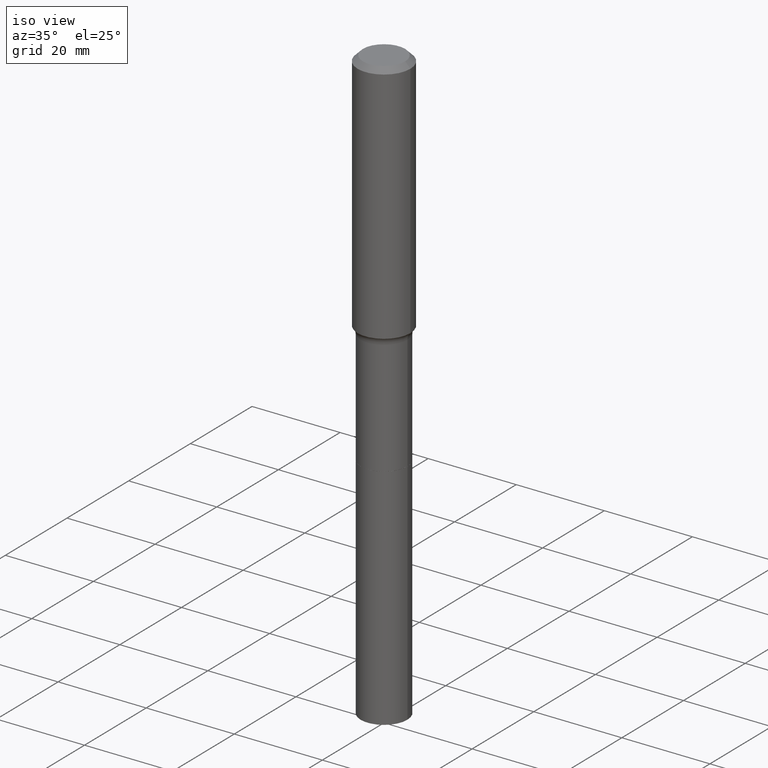
[diagram: clean part render]
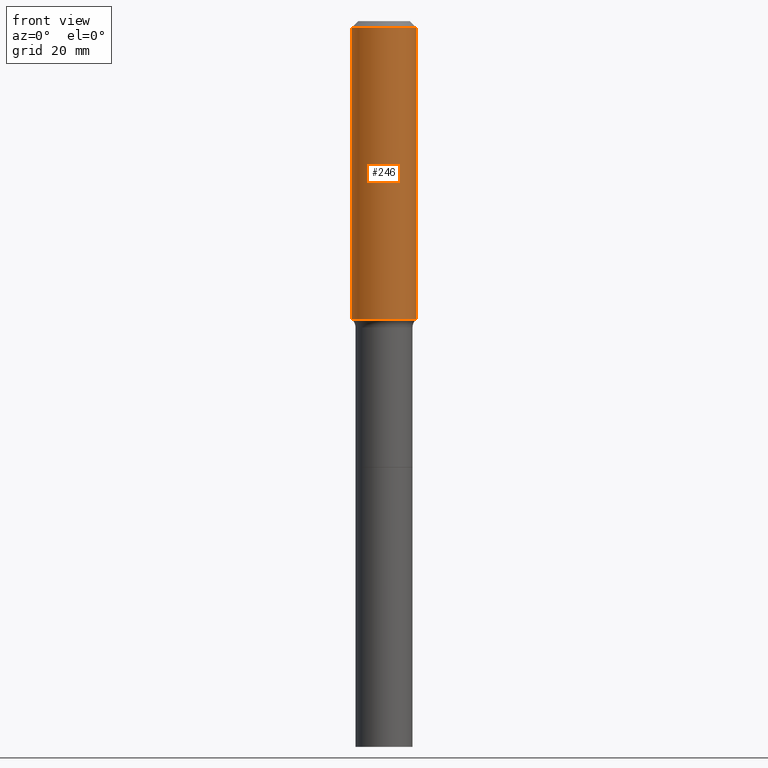
[diagram: tour spotlight — one face highlighted and labeled with its STEP entity id]
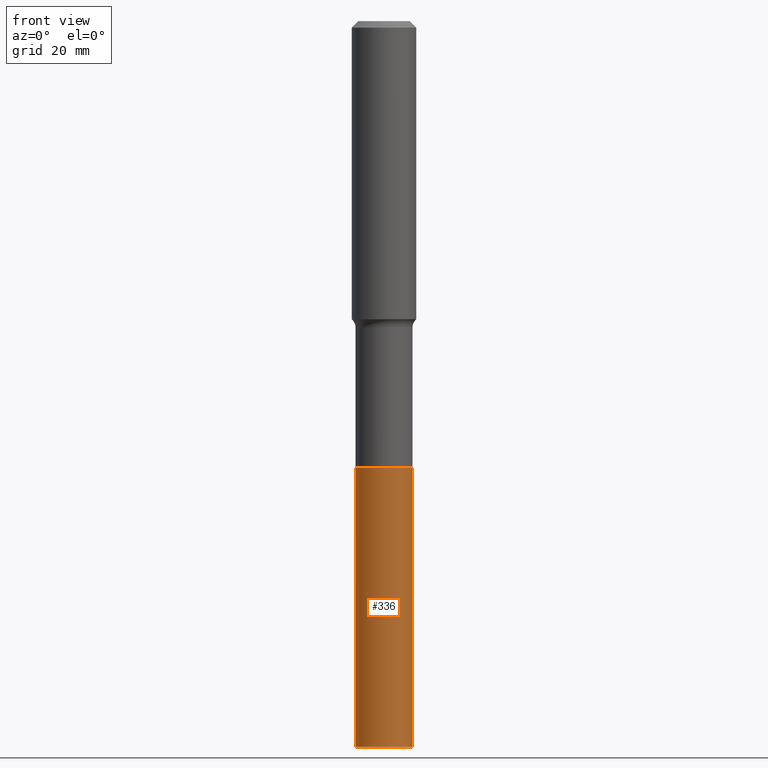
[diagram: tour spotlight — one face highlighted and labeled with its STEP entity id]
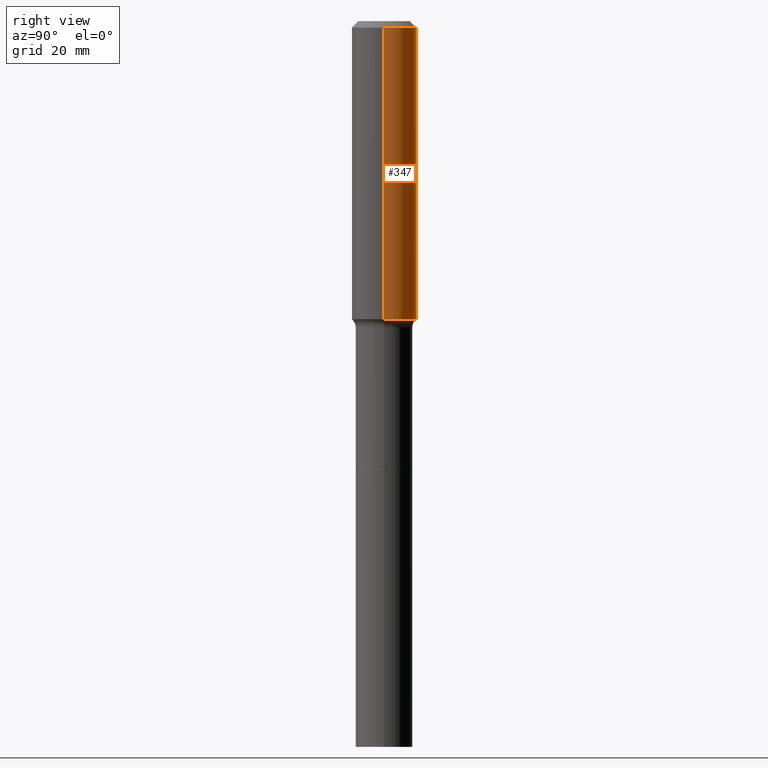
[diagram: tour spotlight — one face highlighted and labeled with its STEP entity id]
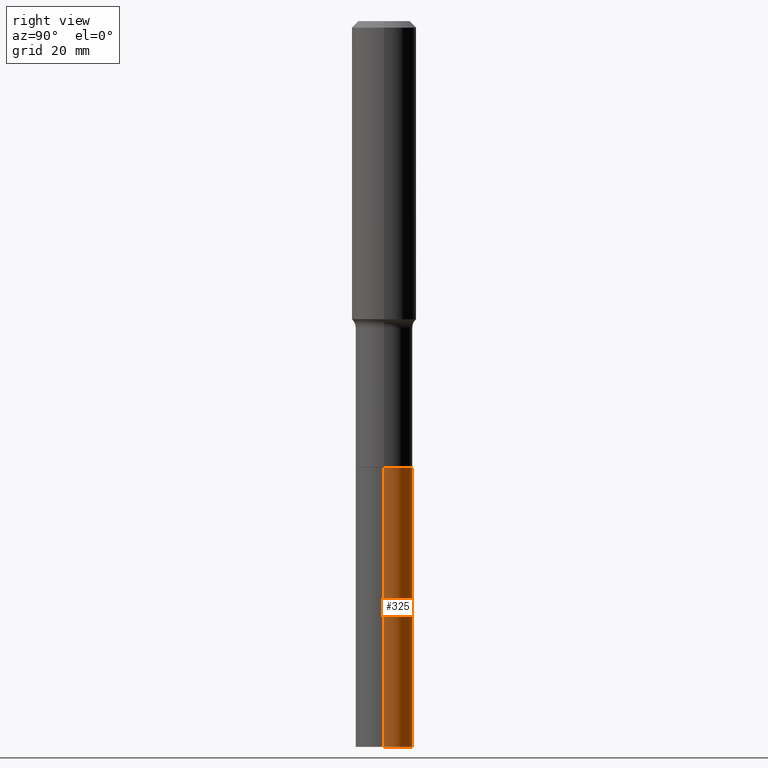
[diagram: tour spotlight — one face highlighted and labeled with its STEP entity id]
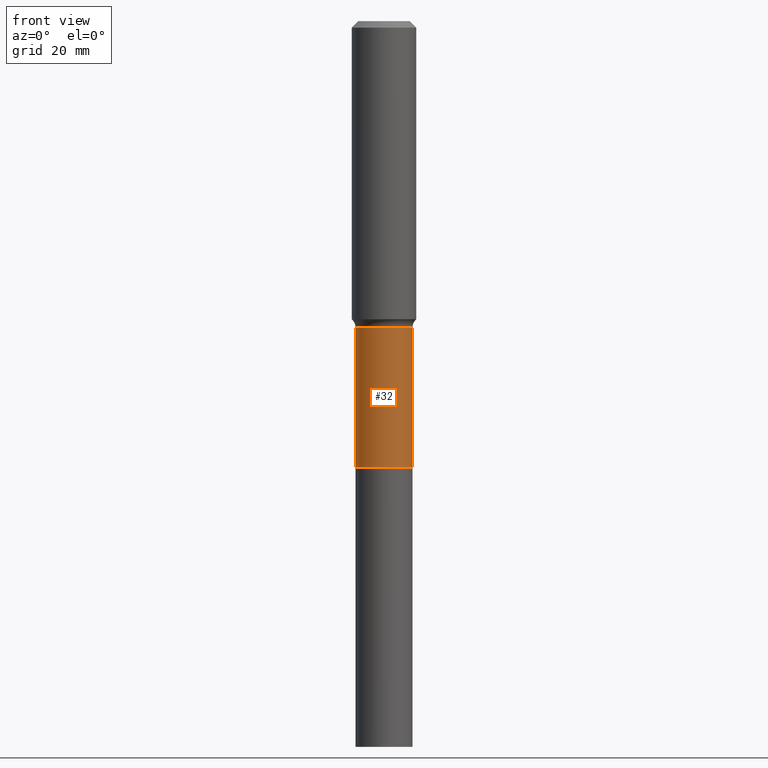
[diagram: tour spotlight — one face highlighted and labeled with its STEP entity id]
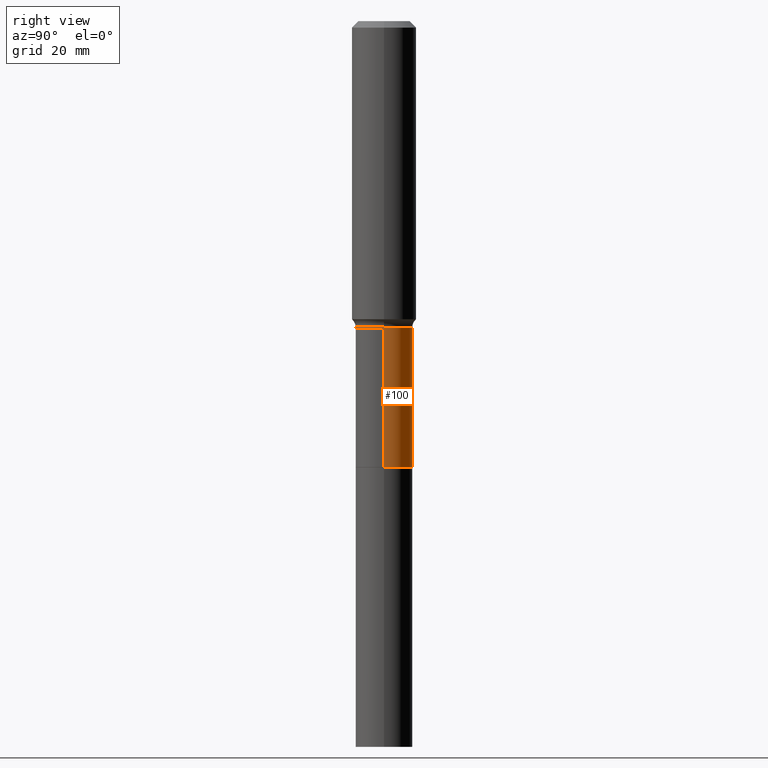
[diagram: tour spotlight — one face highlighted and labeled with its STEP entity id]
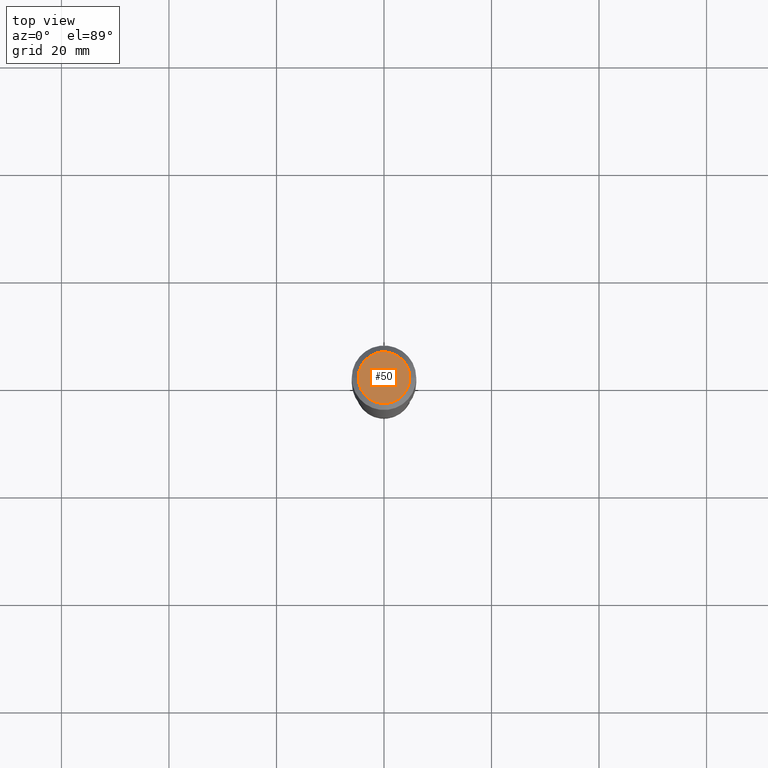
[diagram: tour spotlight — one face highlighted and labeled with its STEP entity id]
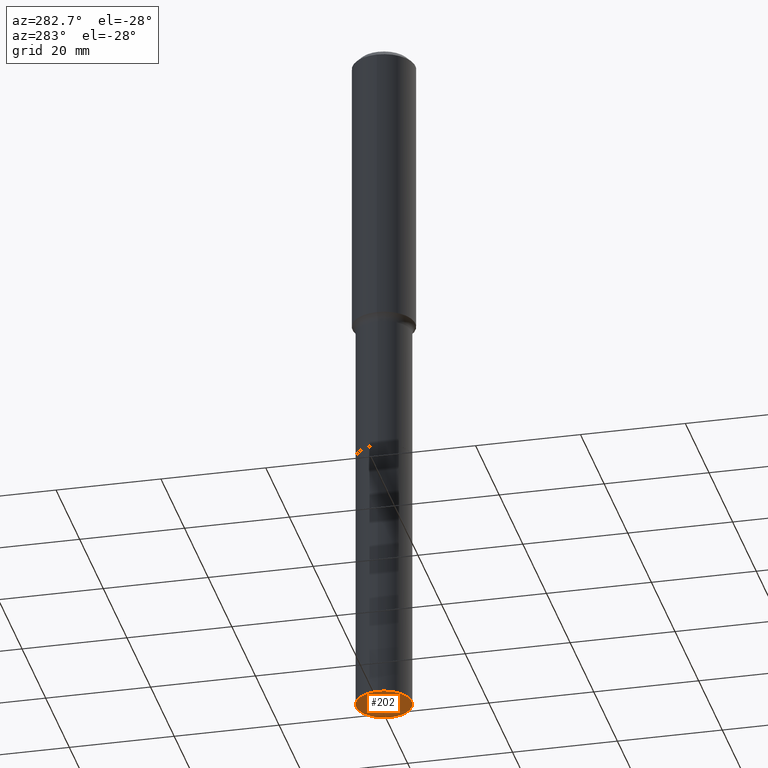
[diagram: tour spotlight — one face highlighted and labeled with its STEP entity id]
A machine part: a face-by-face anatomy tour. The part has 18 B-rep faces; the first image is the clean iso view, then the 8 largest visible faces are spotlighted one at a time (largest first), each with its STEP entity span.

Face 1 — front view, entity #246. In plain terms, the highlighted cylindrical surface (edge-blend (fillet) strip) has radius 5.9995 mm, axis along (-0, 0, 1).
Definition (entity closure, byte-faithful):
#7 = CARTESIAN_POINT ( 'NONE',  ( 0.000000000000000000, 0.000000000000000000, 0.000000000000000000 ) ) ;
#44 = VERTEX_POINT ( 'NONE', #481 ) ;
#49 = DIRECTION ( 'NONE',  ( 1.000000000000000000, -6.982962677686266711E-15, 4.876176775795936353E-29 ) ) ;
#51 = FACE_OUTER_BOUND ( 'NONE', #334, .T. ) ;
#60 = CIRCLE ( 'NONE', #356, 0.2362000000000002709 ) ;
#89 = CYLINDRICAL_SURFACE ( 'NONE', #227, 0.2362000000000001321 ) ;
#92 = DIRECTION ( 'NONE',  ( 1.000000000000000000, -6.982962677686269077E-15, 0.000000000000000000 ) ) ;
#93 = CARTESIAN_POINT ( 'NONE',  ( 0.2362000000000001321, -1.649375784469497117E-15, 1.151752954443000789E-29 ) ) ;
#112 = DIRECTION ( 'NONE',  ( -2.445468806185136877E-29, 3.491481338843145188E-15, 1.000000000000000000 ) ) ;
#123 = DIRECTION ( 'NONE',  ( -2.445468806185136597E-29, 3.491481338843145583E-15, 1.000000000000000000 ) ) ;
#149 = VERTEX_POINT ( 'NONE', #396 ) ;
#158 = EDGE_CURVE ( 'NONE', #44, #149, #313, .T. ) ;
#163 = CARTESIAN_POINT ( 'NONE',  ( 5.338320000124226964E-29, -7.621706158780509838E-15, -2.182943403989625164 ) ) ;
#168 = EDGE_CURVE ( 'NONE', #463, #445, #60, .T. ) ;
#198 = CARTESIAN_POINT ( 'NONE',  ( 1.155239464041865857E-30, -1.649375784469512352E-16, -0.04724000000000030258 ) ) ;
#227 = AXIS2_PLACEMENT_3D ( 'NONE', #7, #252, #49 ) ;
#241 = VECTOR ( 'NONE', #260, 39.37007874015748143 ) ;
#245 = ORIENTED_EDGE ( 'NONE', *, *, #510, .F. ) ;
#246 = ADVANCED_FACE ( 'NONE', ( #51 ), #89, .T. ) ;
#252 = DIRECTION ( 'NONE',  ( -2.445468806185136597E-29, 3.491481338843145583E-15, 1.000000000000000000 ) ) ;
#260 = DIRECTION ( 'NONE',  ( -2.445468806185136877E-29, 3.491481338843145188E-15, 1.000000000000000000 ) ) ;
#275 = DIRECTION ( 'NONE',  ( 1.000000000000000000, -6.982962677686266711E-15, 0.000000000000000000 ) ) ;
#293 = CARTESIAN_POINT ( 'NONE',  ( -0.2362000000000002709, -5.943404216915151867E-15, -2.182943403989625164 ) ) ;
#313 = CIRCLE ( 'NONE', #373, 0.2361999999999999933 ) ;
#334 = EDGE_LOOP ( 'NONE', ( #245, #503, #420, #499 ) ) ;
#356 = AXIS2_PLACEMENT_3D ( 'NONE', #163, #123, #92 ) ;
#373 = AXIS2_PLACEMENT_3D ( 'NONE', #198, #517, #275 ) ;
#380 = CARTESIAN_POINT ( 'NONE',  ( 0.2362000000000002709, -9.271081943250007941E-15, -2.182943403989625164 ) ) ;
#394 = LINE ( 'NONE', #434, #443 ) ;
#396 = CARTESIAN_POINT ( 'NONE',  ( 0.2361999999999999933, -1.814313362916447440E-15, -0.04724000000000030258 ) ) ;
#420 = ORIENTED_EDGE ( 'NONE', *, *, #494, .T. ) ;
#434 = CARTESIAN_POINT ( 'NONE',  ( -0.2362000000000001321, 1.678301941865357577E-15, -1.161852468318209457E-29 ) ) ;
#443 = VECTOR ( 'NONE', #112, 39.37007874015748143 ) ;
#445 = VERTEX_POINT ( 'NONE', #380 ) ;
#463 = VERTEX_POINT ( 'NONE', #293 ) ;
#481 = CARTESIAN_POINT ( 'NONE',  ( -0.2361999999999999933, -2.215019926748371616E-15, -0.04724000000000030258 ) ) ;
#494 = EDGE_CURVE ( 'NONE', #445, #149, #495, .T. ) ;
#495 = LINE ( 'NONE', #93, #241 ) ;
#499 = ORIENTED_EDGE ( 'NONE', *, *, #158, .F. ) ;
#503 = ORIENTED_EDGE ( 'NONE', *, *, #168, .T. ) ;
#510 = EDGE_CURVE ( 'NONE', #463, #44, #394, .T. ) ;
#517 = DIRECTION ( 'NONE',  ( -2.445468806185136597E-29, 3.491481338843145583E-15, 1.000000000000000000 ) ) ;

Face 2 — front view, entity #336. In plain terms, the highlighted cylindrical surface (edge-blend (fillet) strip) has radius 5.2997 mm, axis along (-0, 0, 1).
Definition (entity closure, byte-faithful):
#3 = CYLINDRICAL_SURFACE ( 'NONE', #54, 0.2086500000000001687 ) ;
#4 = CIRCLE ( 'NONE', #501, 0.2086500000000000021 ) ;
#21 = ORIENTED_EDGE ( 'NONE', *, *, #300, .T. ) ;
#36 = LINE ( 'NONE', #398, #184 ) ;
#46 = AXIS2_PLACEMENT_3D ( 'NONE', #318, #121, #86 ) ;
#53 = ORIENTED_EDGE ( 'NONE', *, *, #309, .T. ) ;
#54 = AXIS2_PLACEMENT_3D ( 'NONE', #247, #96, #188 ) ;
#84 = CARTESIAN_POINT ( 'NONE',  ( 0.2086500000000000021, -1.286715617803863986E-14, -3.268000000000000238 ) ) ;
#86 = DIRECTION ( 'NONE',  ( 1.000000000000000000, -6.982962677686263555E-15, 0.000000000000000000 ) ) ;
#96 = DIRECTION ( 'NONE',  ( -2.445468806185136597E-29, 3.491481338843145583E-15, 1.000000000000000000 ) ) ;
#98 = VECTOR ( 'NONE', #242, 39.37007874015748143 ) ;
#109 = EDGE_CURVE ( 'NONE', #485, #340, #36, .T. ) ;
#121 = DIRECTION ( 'NONE',  ( -2.445468806185136597E-29, 3.491481338843145583E-15, 1.000000000000000000 ) ) ;
#125 = CARTESIAN_POINT ( 'NONE',  ( 0.2086500000000003352, -2.001421847865056104E-14, -5.315000000000000391 ) ) ;
#184 = VECTOR ( 'NONE', #518, 39.37007874015748143 ) ;
#188 = DIRECTION ( 'NONE',  ( 1.000000000000000000, -6.982962677686269866E-15, 0.000000000000000000 ) ) ;
#206 = DIRECTION ( 'NONE',  ( 1.000000000000000000, -6.982962677686265922E-15, 0.000000000000000000 ) ) ;
#207 = ORIENTED_EDGE ( 'NONE', *, *, #305, .F. ) ;
#242 = DIRECTION ( 'NONE',  ( -2.445468806185136877E-29, 3.491481338843145188E-15, 1.000000000000000000 ) ) ;
#247 = CARTESIAN_POINT ( 'NONE',  ( 7.991792058613026945E-29, -1.141016101533940013E-14, -3.268000000000000238 ) ) ;
#256 = VERTEX_POINT ( 'NONE', #125 ) ;
#261 = VERTEX_POINT ( 'NONE', #84 ) ;
#263 = EDGE_LOOP ( 'NONE', ( #450, #21, #53, #207 ) ) ;
#264 = CARTESIAN_POINT ( 'NONE',  ( -0.2086500000000000021, -1.350114474748190851E-14, -3.268000000000000238 ) ) ;
#287 = DIRECTION ( 'NONE',  ( -2.445468806185136597E-29, 3.491481338843145583E-15, 1.000000000000000000 ) ) ;
#300 = EDGE_CURVE ( 'NONE', #485, #256, #516, .T. ) ;
#305 = EDGE_CURVE ( 'NONE', #340, #261, #4, .T. ) ;
#309 = EDGE_CURVE ( 'NONE', #256, #261, #326, .T. ) ;
#318 = CARTESIAN_POINT ( 'NONE',  ( 1.299766670487400218E-28, -1.855722331595131973E-14, -5.315000000000000391 ) ) ;
#320 = FACE_OUTER_BOUND ( 'NONE', #263, .T. ) ;
#326 = LINE ( 'NONE', #492, #98 ) ;
#328 = CARTESIAN_POINT ( 'NONE',  ( 7.991792058613026945E-29, -1.141016101533940013E-14, -3.268000000000000238 ) ) ;
#332 = CARTESIAN_POINT ( 'NONE',  ( -0.2086500000000003352, -1.350114474748190378E-14, -5.315000000000000391 ) ) ;
#336 = ADVANCED_FACE ( 'NONE', ( #320 ), #3, .T. ) ;
#340 = VERTEX_POINT ( 'NONE', #264 ) ;
#398 = CARTESIAN_POINT ( 'NONE',  ( -0.2086500000000001687, -9.927613597175949501E-15, -3.268000000000000238 ) ) ;
#450 = ORIENTED_EDGE ( 'NONE', *, *, #109, .F. ) ;
#485 = VERTEX_POINT ( 'NONE', #332 ) ;
#492 = CARTESIAN_POINT ( 'NONE',  ( 0.2086500000000001687, -1.286715617803864144E-14, -3.268000000000000238 ) ) ;
#501 = AXIS2_PLACEMENT_3D ( 'NONE', #328, #287, #206 ) ;
#516 = CIRCLE ( 'NONE', #46, 0.2086500000000003352 ) ;
#518 = DIRECTION ( 'NONE',  ( -2.445468806185136877E-29, 3.491481338843145188E-15, 1.000000000000000000 ) ) ;

Face 3 — right view, entity #347. In plain terms, the highlighted cylindrical surface (edge-blend (fillet) strip) has radius 5.9995 mm, axis along (-0, 0, 1).
Definition (entity closure, byte-faithful):
#23 = DIRECTION ( 'NONE',  ( 1.000000000000000000, -6.982962677686266711E-15, 0.000000000000000000 ) ) ;
#44 = VERTEX_POINT ( 'NONE', #481 ) ;
#47 = ORIENTED_EDGE ( 'NONE', *, *, #510, .T. ) ;
#62 = CARTESIAN_POINT ( 'NONE',  ( 1.155239464041865857E-30, -1.649375784469512352E-16, -0.04724000000000030258 ) ) ;
#81 = AXIS2_PLACEMENT_3D ( 'NONE', #148, #179, #453 ) ;
#87 = ORIENTED_EDGE ( 'NONE', *, *, #494, .F. ) ;
#91 = EDGE_LOOP ( 'NONE', ( #180, #47, #124, #87 ) ) ;
#93 = CARTESIAN_POINT ( 'NONE',  ( 0.2362000000000001321, -1.649375784469497117E-15, 1.151752954443000789E-29 ) ) ;
#112 = DIRECTION ( 'NONE',  ( -2.445468806185136877E-29, 3.491481338843145188E-15, 1.000000000000000000 ) ) ;
#124 = ORIENTED_EDGE ( 'NONE', *, *, #439, .F. ) ;
#128 = CIRCLE ( 'NONE', #422, 0.2362000000000002709 ) ;
#131 = AXIS2_PLACEMENT_3D ( 'NONE', #62, #225, #23 ) ;
#148 = CARTESIAN_POINT ( 'NONE',  ( 0.000000000000000000, 0.000000000000000000, 0.000000000000000000 ) ) ;
#149 = VERTEX_POINT ( 'NONE', #396 ) ;
#154 = CIRCLE ( 'NONE', #131, 0.2361999999999999933 ) ;
#164 = DIRECTION ( 'NONE',  ( 1.000000000000000000, -6.982962677686269077E-15, 0.000000000000000000 ) ) ;
#175 = EDGE_CURVE ( 'NONE', #445, #463, #128, .T. ) ;
#179 = DIRECTION ( 'NONE',  ( -2.445468806185136597E-29, 3.491481338843145583E-15, 1.000000000000000000 ) ) ;
#180 = ORIENTED_EDGE ( 'NONE', *, *, #175, .T. ) ;
#225 = DIRECTION ( 'NONE',  ( -2.445468806185136597E-29, 3.491481338843145583E-15, 1.000000000000000000 ) ) ;
#241 = VECTOR ( 'NONE', #260, 39.37007874015748143 ) ;
#260 = DIRECTION ( 'NONE',  ( -2.445468806185136877E-29, 3.491481338843145188E-15, 1.000000000000000000 ) ) ;
#291 = DIRECTION ( 'NONE',  ( -2.445468806185136597E-29, 3.491481338843145583E-15, 1.000000000000000000 ) ) ;
#293 = CARTESIAN_POINT ( 'NONE',  ( -0.2362000000000002709, -5.943404216915151867E-15, -2.182943403989625164 ) ) ;
#335 = CYLINDRICAL_SURFACE ( 'NONE', #81, 0.2362000000000001321 ) ;
#347 = ADVANCED_FACE ( 'NONE', ( #505 ), #335, .T. ) ;
#380 = CARTESIAN_POINT ( 'NONE',  ( 0.2362000000000002709, -9.271081943250007941E-15, -2.182943403989625164 ) ) ;
#394 = LINE ( 'NONE', #434, #443 ) ;
#396 = CARTESIAN_POINT ( 'NONE',  ( 0.2361999999999999933, -1.814313362916447440E-15, -0.04724000000000030258 ) ) ;
#422 = AXIS2_PLACEMENT_3D ( 'NONE', #441, #291, #164 ) ;
#434 = CARTESIAN_POINT ( 'NONE',  ( -0.2362000000000001321, 1.678301941865357577E-15, -1.161852468318209457E-29 ) ) ;
#439 = EDGE_CURVE ( 'NONE', #149, #44, #154, .T. ) ;
#441 = CARTESIAN_POINT ( 'NONE',  ( 5.338320000124226964E-29, -7.621706158780509838E-15, -2.182943403989625164 ) ) ;
#443 = VECTOR ( 'NONE', #112, 39.37007874015748143 ) ;
#445 = VERTEX_POINT ( 'NONE', #380 ) ;
#453 = DIRECTION ( 'NONE',  ( 1.000000000000000000, -6.982962677686266711E-15, 4.876176775795936353E-29 ) ) ;
#463 = VERTEX_POINT ( 'NONE', #293 ) ;
#481 = CARTESIAN_POINT ( 'NONE',  ( -0.2361999999999999933, -2.215019926748371616E-15, -0.04724000000000030258 ) ) ;
#494 = EDGE_CURVE ( 'NONE', #445, #149, #495, .T. ) ;
#495 = LINE ( 'NONE', #93, #241 ) ;
#505 = FACE_OUTER_BOUND ( 'NONE', #91, .T. ) ;
#510 = EDGE_CURVE ( 'NONE', #463, #44, #394, .T. ) ;

Face 4 — right view, entity #325. In plain terms, the highlighted cylindrical surface (edge-blend (fillet) strip) has radius 5.2997 mm, axis along (-0, 0, 1).
Definition (entity closure, byte-faithful):
#1 = CYLINDRICAL_SURFACE ( 'NONE', #73, 0.2086500000000001687 ) ;
#12 = CIRCLE ( 'NONE', #240, 0.2086500000000003352 ) ;
#31 = DIRECTION ( 'NONE',  ( -2.445468806185136597E-29, 3.491481338843145583E-15, 1.000000000000000000 ) ) ;
#36 = LINE ( 'NONE', #398, #184 ) ;
#40 = CARTESIAN_POINT ( 'NONE',  ( 1.299766670487400218E-28, -1.855722331595131973E-14, -5.315000000000000391 ) ) ;
#63 = ORIENTED_EDGE ( 'NONE', *, *, #79, .F. ) ;
#67 = EDGE_CURVE ( 'NONE', #256, #485, #12, .T. ) ;
#72 = DIRECTION ( 'NONE',  ( -2.445468806185136597E-29, 3.491481338843145583E-15, 1.000000000000000000 ) ) ;
#73 = AXIS2_PLACEMENT_3D ( 'NONE', #165, #405, #364 ) ;
#79 = EDGE_CURVE ( 'NONE', #261, #340, #95, .T. ) ;
#84 = CARTESIAN_POINT ( 'NONE',  ( 0.2086500000000000021, -1.286715617803863986E-14, -3.268000000000000238 ) ) ;
#95 = CIRCLE ( 'NONE', #208, 0.2086500000000000021 ) ;
#98 = VECTOR ( 'NONE', #242, 39.37007874015748143 ) ;
#109 = EDGE_CURVE ( 'NONE', #485, #340, #36, .T. ) ;
#117 = DIRECTION ( 'NONE',  ( 1.000000000000000000, -6.982962677686263555E-15, 0.000000000000000000 ) ) ;
#125 = CARTESIAN_POINT ( 'NONE',  ( 0.2086500000000003352, -2.001421847865056104E-14, -5.315000000000000391 ) ) ;
#165 = CARTESIAN_POINT ( 'NONE',  ( 7.991792058613026945E-29, -1.141016101533940013E-14, -3.268000000000000238 ) ) ;
#184 = VECTOR ( 'NONE', #518, 39.37007874015748143 ) ;
#204 = FACE_OUTER_BOUND ( 'NONE', #248, .T. ) ;
#208 = AXIS2_PLACEMENT_3D ( 'NONE', #312, #31, #511 ) ;
#240 = AXIS2_PLACEMENT_3D ( 'NONE', #40, #72, #117 ) ;
#242 = DIRECTION ( 'NONE',  ( -2.445468806185136877E-29, 3.491481338843145188E-15, 1.000000000000000000 ) ) ;
#248 = EDGE_LOOP ( 'NONE', ( #423, #265, #63, #496 ) ) ;
#256 = VERTEX_POINT ( 'NONE', #125 ) ;
#261 = VERTEX_POINT ( 'NONE', #84 ) ;
#264 = CARTESIAN_POINT ( 'NONE',  ( -0.2086500000000000021, -1.350114474748190851E-14, -3.268000000000000238 ) ) ;
#265 = ORIENTED_EDGE ( 'NONE', *, *, #109, .T. ) ;
#309 = EDGE_CURVE ( 'NONE', #256, #261, #326, .T. ) ;
#312 = CARTESIAN_POINT ( 'NONE',  ( 7.991792058613026945E-29, -1.141016101533940013E-14, -3.268000000000000238 ) ) ;
#325 = ADVANCED_FACE ( 'NONE', ( #204 ), #1, .T. ) ;
#326 = LINE ( 'NONE', #492, #98 ) ;
#332 = CARTESIAN_POINT ( 'NONE',  ( -0.2086500000000003352, -1.350114474748190378E-14, -5.315000000000000391 ) ) ;
#340 = VERTEX_POINT ( 'NONE', #264 ) ;
#364 = DIRECTION ( 'NONE',  ( 1.000000000000000000, -6.982962677686269866E-15, 0.000000000000000000 ) ) ;
#398 = CARTESIAN_POINT ( 'NONE',  ( -0.2086500000000001687, -9.927613597175949501E-15, -3.268000000000000238 ) ) ;
#405 = DIRECTION ( 'NONE',  ( -2.445468806185136597E-29, 3.491481338843145583E-15, 1.000000000000000000 ) ) ;
#423 = ORIENTED_EDGE ( 'NONE', *, *, #67, .T. ) ;
#485 = VERTEX_POINT ( 'NONE', #332 ) ;
#492 = CARTESIAN_POINT ( 'NONE',  ( 0.2086500000000001687, -1.286715617803864144E-14, -3.268000000000000238 ) ) ;
#496 = ORIENTED_EDGE ( 'NONE', *, *, #309, .F. ) ;
#511 = DIRECTION ( 'NONE',  ( 1.000000000000000000, -6.982962677686265922E-15, 0.000000000000000000 ) ) ;
#518 = DIRECTION ( 'NONE',  ( -2.445468806185136877E-29, 3.491481338843145188E-15, 1.000000000000000000 ) ) ;

Face 5 — front view, entity #32. In plain terms, the highlighted cylindrical surface (edge-blend (fillet) strip) has radius 5.2997 mm, axis along (-0, 0, 1).
Definition (entity closure, byte-faithful):
#8 = ORIENTED_EDGE ( 'NONE', *, *, #448, .F. ) ;
#17 = VERTEX_POINT ( 'NONE', #110 ) ;
#32 = ADVANCED_FACE ( 'NONE', ( #160 ), #201, .T. ) ;
#41 = DIRECTION ( 'NONE',  ( -2.445468806185136877E-29, 3.491481338843145188E-15, 1.000000000000000000 ) ) ;
#58 = DIRECTION ( 'NONE',  ( 1.000000000000000000, -6.982962677686265922E-15, 0.000000000000000000 ) ) ;
#61 = EDGE_CURVE ( 'NONE', #385, #183, #479, .T. ) ;
#64 = AXIS2_PLACEMENT_3D ( 'NONE', #298, #223, #502 ) ;
#65 = DIRECTION ( 'NONE',  ( -2.445468806185136597E-29, 3.491481338843145583E-15, 1.000000000000000000 ) ) ;
#75 = CARTESIAN_POINT ( 'NONE',  ( 0.000000000000000000, 0.000000000000000000, 0.000000000000000000 ) ) ;
#94 = ORIENTED_EDGE ( 'NONE', *, *, #250, .F. ) ;
#104 = VERTEX_POINT ( 'NONE', #193 ) ;
#110 = CARTESIAN_POINT ( 'NONE',  ( -0.2086499999999999744, -8.139102281353550858E-15, -3.267500000000000071 ) ) ;
#126 = ORIENTED_EDGE ( 'NONE', *, *, #61, .T. ) ;
#141 = EDGE_LOOP ( 'NONE', ( #94, #376, #126, #8 ) ) ;
#160 = FACE_OUTER_BOUND ( 'NONE', #141, .T. ) ;
#177 = AXIS2_PLACEMENT_3D ( 'NONE', #262, #65, #58 ) ;
#183 = VERTEX_POINT ( 'NONE', #489 ) ;
#192 = AXIS2_PLACEMENT_3D ( 'NONE', #75, #399, #354 ) ;
#193 = CARTESIAN_POINT ( 'NONE',  ( -0.2086499999999998634, -8.139102281353550858E-15, -2.244000000000000217 ) ) ;
#199 = CIRCLE ( 'NONE', #177, 0.2086499999999998634 ) ;
#201 = CYLINDRICAL_SURFACE ( 'NONE', #192, 0.2086499999999999466 ) ;
#213 = LINE ( 'NONE', #214, #217 ) ;
#214 = CARTESIAN_POINT ( 'NONE',  ( -0.2086499999999999466, 1.482547418163448659E-15, -1.026335806581685680E-29 ) ) ;
#217 = VECTOR ( 'NONE', #41, 39.37007874015748143 ) ;
#223 = DIRECTION ( 'NONE',  ( -2.445468806185136597E-29, 3.491481338843145583E-15, 1.000000000000000000 ) ) ;
#250 = EDGE_CURVE ( 'NONE', #17, #104, #213, .T. ) ;
#259 = CIRCLE ( 'NONE', #64, 0.2086500000000000021 ) ;
#262 = CARTESIAN_POINT ( 'NONE',  ( 5.487632001079447088E-29, -7.834884124364020406E-15, -2.244000000000000217 ) ) ;
#279 = DIRECTION ( 'NONE',  ( -2.445468806185136877E-29, 3.491481338843145188E-15, 1.000000000000000000 ) ) ;
#298 = CARTESIAN_POINT ( 'NONE',  ( 7.990569324209934144E-29, -1.140841527466997784E-14, -3.267500000000000071 ) ) ;
#333 = CARTESIAN_POINT ( 'NONE',  ( 0.2086500000000000021, -1.286541043736921757E-14, -3.267500000000000071 ) ) ;
#343 = EDGE_CURVE ( 'NONE', #17, #385, #259, .T. ) ;
#354 = DIRECTION ( 'NONE',  ( 1.000000000000000000, -6.982962677686266711E-15, 4.876176775795935793E-29 ) ) ;
#376 = ORIENTED_EDGE ( 'NONE', *, *, #343, .T. ) ;
#385 = VERTEX_POINT ( 'NONE', #333 ) ;
#389 = CARTESIAN_POINT ( 'NONE',  ( 0.2086499999999999466, -1.456995162699239141E-15, 1.017414284269821704E-29 ) ) ;
#390 = VECTOR ( 'NONE', #279, 39.37007874015748143 ) ;
#399 = DIRECTION ( 'NONE',  ( -2.445468806185136597E-29, 3.491481338843145583E-15, 1.000000000000000000 ) ) ;
#448 = EDGE_CURVE ( 'NONE', #104, #183, #199, .T. ) ;
#479 = LINE ( 'NONE', #389, #390 ) ;
#489 = CARTESIAN_POINT ( 'NONE',  ( 0.2086499999999998634, -9.291879287063258560E-15, -2.244000000000000217 ) ) ;
#502 = DIRECTION ( 'NONE',  ( 1.000000000000000000, -6.982962677686265922E-15, 0.000000000000000000 ) ) ;

Face 6 — right view, entity #100. In plain terms, the highlighted cylindrical surface (edge-blend (fillet) strip) has radius 5.2997 mm, axis along (-0, 0, 1).
Definition (entity closure, byte-faithful):
#17 = VERTEX_POINT ( 'NONE', #110 ) ;
#39 = AXIS2_PLACEMENT_3D ( 'NONE', #361, #368, #172 ) ;
#41 = DIRECTION ( 'NONE',  ( -2.445468806185136877E-29, 3.491481338843145188E-15, 1.000000000000000000 ) ) ;
#52 = DIRECTION ( 'NONE',  ( -2.445468806185136597E-29, 3.491481338843145583E-15, 1.000000000000000000 ) ) ;
#61 = EDGE_CURVE ( 'NONE', #385, #183, #479, .T. ) ;
#77 = DIRECTION ( 'NONE',  ( -2.445468806185136597E-29, 3.491481338843145583E-15, 1.000000000000000000 ) ) ;
#100 = ADVANCED_FACE ( 'NONE', ( #310 ), #156, .T. ) ;
#104 = VERTEX_POINT ( 'NONE', #193 ) ;
#110 = CARTESIAN_POINT ( 'NONE',  ( -0.2086499999999999744, -8.139102281353550858E-15, -3.267500000000000071 ) ) ;
#135 = EDGE_LOOP ( 'NONE', ( #337, #457, #414, #342 ) ) ;
#156 = CYLINDRICAL_SURFACE ( 'NONE', #477, 0.2086499999999999466 ) ;
#172 = DIRECTION ( 'NONE',  ( 1.000000000000000000, -6.982962677686265922E-15, 0.000000000000000000 ) ) ;
#183 = VERTEX_POINT ( 'NONE', #489 ) ;
#193 = CARTESIAN_POINT ( 'NONE',  ( -0.2086499999999998634, -8.139102281353550858E-15, -2.244000000000000217 ) ) ;
#213 = LINE ( 'NONE', #214, #217 ) ;
#214 = CARTESIAN_POINT ( 'NONE',  ( -0.2086499999999999466, 1.482547418163448659E-15, -1.026335806581685680E-29 ) ) ;
#217 = VECTOR ( 'NONE', #41, 39.37007874015748143 ) ;
#250 = EDGE_CURVE ( 'NONE', #17, #104, #213, .T. ) ;
#251 = CIRCLE ( 'NONE', #39, 0.2086499999999998634 ) ;
#255 = CARTESIAN_POINT ( 'NONE',  ( 7.990569324209934144E-29, -1.140841527466997784E-14, -3.267500000000000071 ) ) ;
#257 = EDGE_CURVE ( 'NONE', #183, #104, #251, .T. ) ;
#268 = AXIS2_PLACEMENT_3D ( 'NONE', #255, #52, #417 ) ;
#279 = DIRECTION ( 'NONE',  ( -2.445468806185136877E-29, 3.491481338843145188E-15, 1.000000000000000000 ) ) ;
#310 = FACE_OUTER_BOUND ( 'NONE', #135, .T. ) ;
#315 = CIRCLE ( 'NONE', #268, 0.2086500000000000021 ) ;
#333 = CARTESIAN_POINT ( 'NONE',  ( 0.2086500000000000021, -1.286541043736921757E-14, -3.267500000000000071 ) ) ;
#337 = ORIENTED_EDGE ( 'NONE', *, *, #497, .T. ) ;
#342 = ORIENTED_EDGE ( 'NONE', *, *, #61, .F. ) ;
#360 = CARTESIAN_POINT ( 'NONE',  ( 0.000000000000000000, 0.000000000000000000, 0.000000000000000000 ) ) ;
#361 = CARTESIAN_POINT ( 'NONE',  ( 5.487632001079447088E-29, -7.834884124364020406E-15, -2.244000000000000217 ) ) ;
#368 = DIRECTION ( 'NONE',  ( -2.445468806185136597E-29, 3.491481338843145583E-15, 1.000000000000000000 ) ) ;
#385 = VERTEX_POINT ( 'NONE', #333 ) ;
#389 = CARTESIAN_POINT ( 'NONE',  ( 0.2086499999999999466, -1.456995162699239141E-15, 1.017414284269821704E-29 ) ) ;
#390 = VECTOR ( 'NONE', #279, 39.37007874015748143 ) ;
#414 = ORIENTED_EDGE ( 'NONE', *, *, #257, .F. ) ;
#417 = DIRECTION ( 'NONE',  ( 1.000000000000000000, -6.982962677686265922E-15, 0.000000000000000000 ) ) ;
#457 = ORIENTED_EDGE ( 'NONE', *, *, #250, .T. ) ;
#475 = DIRECTION ( 'NONE',  ( 1.000000000000000000, -6.982962677686266711E-15, 4.876176775795935793E-29 ) ) ;
#477 = AXIS2_PLACEMENT_3D ( 'NONE', #360, #77, #475 ) ;
#479 = LINE ( 'NONE', #389, #390 ) ;
#489 = CARTESIAN_POINT ( 'NONE',  ( 0.2086499999999998634, -9.291879287063258560E-15, -2.244000000000000217 ) ) ;
#497 = EDGE_CURVE ( 'NONE', #385, #17, #315, .T. ) ;

Face 7 — top view, entity #50. In plain terms, the highlighted planar face has unit normal (0, -0, -1).
Definition (entity closure, byte-faithful):
#50 = ADVANCED_FACE ( 'NONE', ( #317 ), #271, .F. ) ;
#82 = CARTESIAN_POINT ( 'NONE',  ( -0.1889600000000000168, 1.401969416799070942E-15, 3.855188123706346622E-18 ) ) ;
#85 = EDGE_LOOP ( 'NONE', ( #173, #288 ) ) ;
#101 = CARTESIAN_POINT ( 'NONE',  ( 0.1889600000000000168, -1.540873453589747738E-15, 3.855188123725863225E-18 ) ) ;
#119 = DIRECTION ( 'NONE',  ( 2.438088387897960049E-29, -3.491481338843145188E-15, -1.000000000000000000 ) ) ;
#140 = DIRECTION ( 'NONE',  ( -2.445468806185136597E-29, 3.491481338843145583E-15, 1.000000000000000000 ) ) ;
#173 = ORIENTED_EDGE ( 'NONE', *, *, #404, .T. ) ;
#178 = DIRECTION ( 'NONE',  ( 1.000000000000000000, -6.982962677686266711E-15, 4.876185090822587894E-29 ) ) ;
#185 = DIRECTION ( 'NONE',  ( -2.445468806185136597E-29, 3.491481338843145583E-15, 1.000000000000000000 ) ) ;
#228 = CARTESIAN_POINT ( 'NONE',  ( -9.427742298522546243E-47, 1.346031739168365344E-32, 3.855188123715862256E-18 ) ) ;
#238 = CARTESIAN_POINT ( 'NONE',  ( -4.713871149261273121E-47, 6.730158695841826722E-33, 1.927594061857931128E-18 ) ) ;
#266 = AXIS2_PLACEMENT_3D ( 'NONE', #238, #119, #428 ) ;
#271 = PLANE ( 'NONE',  #266 ) ;
#288 = ORIENTED_EDGE ( 'NONE', *, *, #458, .T. ) ;
#292 = DIRECTION ( 'NONE',  ( 1.000000000000000000, -6.982962677686266711E-15, 4.876185090822587894E-29 ) ) ;
#297 = VERTEX_POINT ( 'NONE', #82 ) ;
#306 = AXIS2_PLACEMENT_3D ( 'NONE', #228, #185, #178 ) ;
#317 = FACE_OUTER_BOUND ( 'NONE', #85, .T. ) ;
#359 = CIRCLE ( 'NONE', #435, 0.1889600000000000168 ) ;
#404 = EDGE_CURVE ( 'NONE', #297, #411, #359, .T. ) ;
#411 = VERTEX_POINT ( 'NONE', #101 ) ;
#428 = DIRECTION ( 'NONE',  ( -1.000000000000000000, 6.982962677686265922E-15, -4.876176775795935793E-29 ) ) ;
#435 = AXIS2_PLACEMENT_3D ( 'NONE', #460, #140, #292 ) ;
#458 = EDGE_CURVE ( 'NONE', #411, #297, #467, .T. ) ;
#460 = CARTESIAN_POINT ( 'NONE',  ( -9.427742298522546243E-47, 1.346031739168365344E-32, 3.855188123715862256E-18 ) ) ;
#467 = CIRCLE ( 'NONE', #306, 0.1889600000000000168 ) ;

Face 8 — auxiliary view, entity #202. In plain terms, the highlighted planar face has unit normal (0, -0, -1).
Definition (entity closure, byte-faithful):
#12 = CIRCLE ( 'NONE', #240, 0.2086500000000003352 ) ;
#40 = CARTESIAN_POINT ( 'NONE',  ( 1.299766670487400218E-28, -1.855722331595131973E-14, -5.315000000000000391 ) ) ;
#46 = AXIS2_PLACEMENT_3D ( 'NONE', #318, #121, #86 ) ;
#67 = EDGE_CURVE ( 'NONE', #256, #485, #12, .T. ) ;
#72 = DIRECTION ( 'NONE',  ( -2.445468806185136597E-29, 3.491481338843145583E-15, 1.000000000000000000 ) ) ;
#86 = DIRECTION ( 'NONE',  ( 1.000000000000000000, -6.982962677686263555E-15, 0.000000000000000000 ) ) ;
#117 = DIRECTION ( 'NONE',  ( 1.000000000000000000, -6.982962677686263555E-15, 0.000000000000000000 ) ) ;
#121 = DIRECTION ( 'NONE',  ( -2.445468806185136597E-29, 3.491481338843145583E-15, 1.000000000000000000 ) ) ;
#125 = CARTESIAN_POINT ( 'NONE',  ( 0.2086500000000003352, -2.001421847865056104E-14, -5.315000000000000391 ) ) ;
#127 = CARTESIAN_POINT ( 'NONE',  ( 1.299766670487400218E-28, -1.855722331595131973E-14, -5.315000000000000391 ) ) ;
#139 = AXIS2_PLACEMENT_3D ( 'NONE', #127, #452, #447 ) ;
#153 = ORIENTED_EDGE ( 'NONE', *, *, #300, .F. ) ;
#190 = EDGE_LOOP ( 'NONE', ( #224, #153 ) ) ;
#202 = ADVANCED_FACE ( 'NONE', ( #285 ), #488, .T. ) ;
#224 = ORIENTED_EDGE ( 'NONE', *, *, #67, .F. ) ;
#240 = AXIS2_PLACEMENT_3D ( 'NONE', #40, #72, #117 ) ;
#256 = VERTEX_POINT ( 'NONE', #125 ) ;
#285 = FACE_OUTER_BOUND ( 'NONE', #190, .T. ) ;
#300 = EDGE_CURVE ( 'NONE', #485, #256, #516, .T. ) ;
#318 = CARTESIAN_POINT ( 'NONE',  ( 1.299766670487400218E-28, -1.855722331595131973E-14, -5.315000000000000391 ) ) ;
#332 = CARTESIAN_POINT ( 'NONE',  ( -0.2086500000000003352, -1.350114474748190378E-14, -5.315000000000000391 ) ) ;
#447 = DIRECTION ( 'NONE',  ( -1.000000000000000000, 6.982962677686265922E-15, -4.876176775795935793E-29 ) ) ;
#452 = DIRECTION ( 'NONE',  ( 2.438088387897960049E-29, -3.491481338843145188E-15, -1.000000000000000000 ) ) ;
#485 = VERTEX_POINT ( 'NONE', #332 ) ;
#488 = PLANE ( 'NONE',  #139 ) ;
#516 = CIRCLE ( 'NONE', #46, 0.2086500000000003352 ) ;